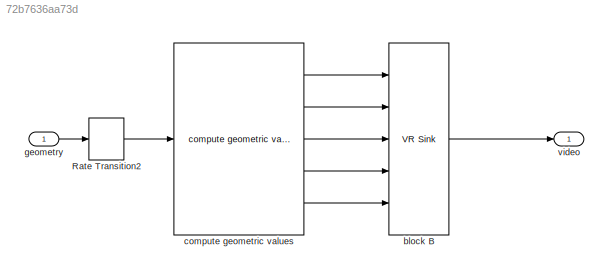
MODEL slx_72b7636aa73d
KIND model
WORKSPACE source: MAT-file member
WORKSPACE ini_nozzle_vpos = 0.3
BLOCK [RateTransition] Rate Transition2
  Deterministic = off
  OutPortSampleTime = 0.1
BLOCK [Reference] block B  REF=vrlib/VR Sink
  AllowVariableSize = off
  AutoView = off
  FieldsWritten = red_block2x3dim.translation.3.1.1.double#slider.translation.3.1.1.double#LOWER.translation.3.1.1.double#purple_block2x3dim.translation.3.1.1.double#blue_block2x3dim.translation.3.1.1.double
  FigureProperties = {'Position', 'Name', 'Viewpoint', 'CameraBound', 'CameraDirection', 'CameraPosition', 'CameraUpVector', 'ZoomFactor', 'Antialiasing', 'Headlight', 'Lighting', 'NavPanel', 'StatusBar', 'ToolBar', 'Textures', 'Transparency', 'Triad', 'Wireframe', 'NavZones', 'NavMode', 'NavSpeed', 'CaptureFileFormat', 'CaptureFileName', 'Record2DCompressMethod', 'Record2DCompressQuality', 'Record2D', 'Record2DFileNa...<+604ch>
  InstantiateOnLoad = on
  Ports = [5, 1]
  RemoteChange = off
  RemoteView = off
  SampleTime = 0.1
  SourceBlock = vrlib/VR Sink
  SourceType = Virtual Reality Sink
  VideoDimensions = [240 120]
  ViewEnable = on
  WorldFileName = cps_world_v2.wrl
BLOCK [Reference] compute geometric values  REF=cps_lib_v2/compute geometric  (lib defined in slx_b159750f0f55)
values
  Ports = [1, 5]
  SourceBlock = cps_lib_v2/compute geometric\nvalues
  SourceType = SubSystem
BLOCK [Inport] geometry
  IconDisplay = Port number
  OutDataTypeStr = Bus: slBusGeometry
  SampleTime = 0.005
BLOCK [Outport] video
  IconDisplay = Port number
LINE Rate Transition2:1 -> compute geometric values:1
LINE block B:1 -> video:1
LINE compute geometric values:1 -> block B:1
LINE compute geometric values:2 -> block B:2
LINE compute geometric values:3 -> block B:3
LINE compute geometric values:4 -> block B:4
LINE compute geometric values:5 -> block B:5
LINE geometry:1 -> Rate Transition2:1
